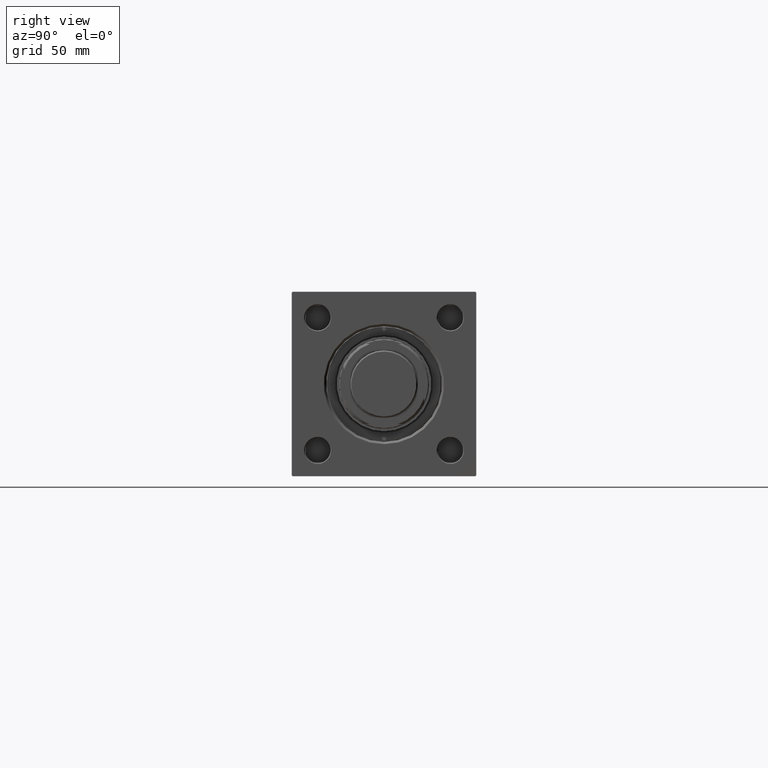
[diagram: clean part render]
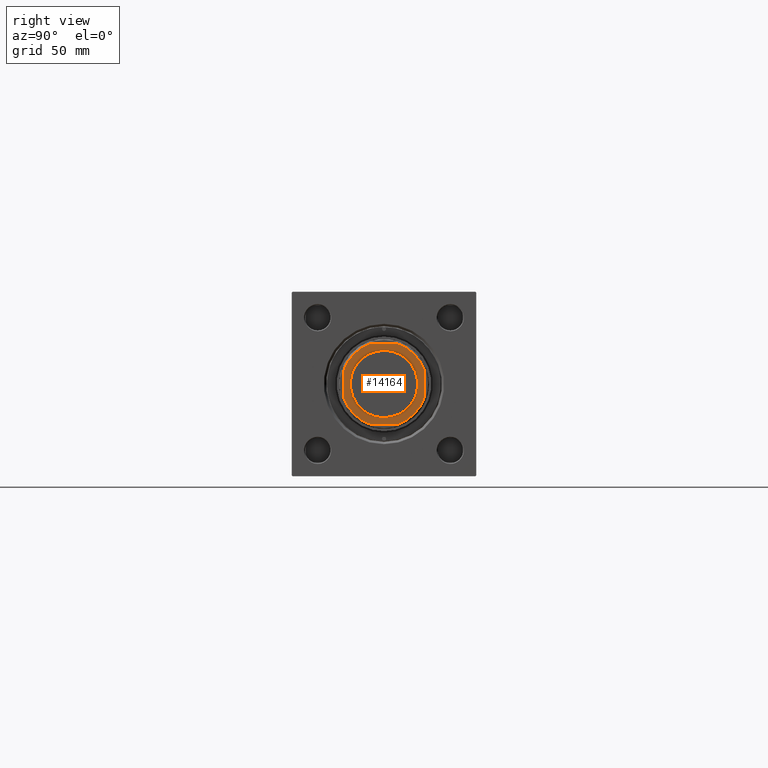
[diagram: same view with one face highlighted and labeled with its STEP entity id]
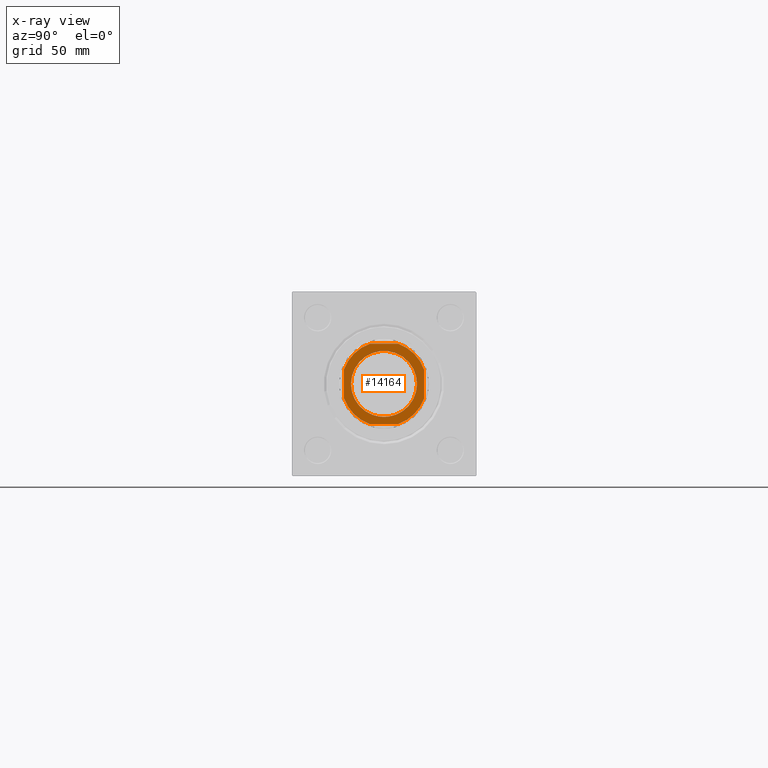
[diagram: x-ray of the same camera — body ghosted, the highlighted face saturated]
A machine part, right view. The second image highlights one B-rep face of the part: STEP entity #14164.
The next image is the same camera in x-ray: the body ghosted, the highlighted face saturated — about 0% of this face is hidden behind the body in this view.
In plain terms, the highlighted planar face has unit normal (1, 0, 0).
Its self-contained STEP definition (entity closure, byte-faithful):
#512 = VERTEX_POINT ( 'NONE', #25405 ) ;
#1053 = ORIENTED_EDGE ( 'NONE', *, *, #2964, .T. ) ;
#1127 = LINE ( 'NONE', #6024, #16116 ) ;
#1290 = CARTESIAN_POINT ( 'NONE',  ( 0.000000000000000000, 0.000000000000000000, 306.0000000000000000 ) ) ;
#1526 = CARTESIAN_POINT ( 'NONE',  ( -24.99999999999999645, -8.789197915623281787, 306.0000000000000000 ) ) ;
#1700 = CIRCLE ( 'NONE', #41454, 26.50000000000004263 ) ;
#2248 = DIRECTION ( 'NONE',  ( 0.000000000000000000, -0.000000000000000000, -1.000000000000000000 ) ) ;
#2527 = EDGE_CURVE ( 'NONE', #512, #7964, #15538, .T. ) ;
#2964 = EDGE_CURVE ( 'NONE', #35928, #15104, #5581, .T. ) ;
#2986 = DIRECTION ( 'NONE',  ( 1.387778780781445676E-16, -1.000000000000000000, 0.000000000000000000 ) ) ;
#3419 = CARTESIAN_POINT ( 'NONE',  ( 0.000000000000000000, 0.000000000000000000, 306.0000000000000000 ) ) ;
#4318 = AXIS2_PLACEMENT_3D ( 'NONE', #24592, #28486, #32119 ) ;
#5349 = VERTEX_POINT ( 'NONE', #1526 ) ;
#5581 = CIRCLE ( 'NONE', #48635, 20.54999999999992966 ) ;
#5954 = EDGE_CURVE ( 'NONE', #8696, #5349, #22960, .T. ) ;
#6024 = CARTESIAN_POINT ( 'NONE',  ( 25.00000000000000000, 25.00000000000000000, 306.0000000000000000 ) ) ;
#6444 = DIRECTION ( 'NONE',  ( -0.000000000000000000, 0.000000000000000000, 1.000000000000000000 ) ) ;
#6547 = DIRECTION ( 'NONE',  ( -1.387778780781445676E-16, 1.000000000000000000, -0.000000000000000000 ) ) ;
#6796 = ORIENTED_EDGE ( 'NONE', *, *, #39036, .T. ) ;
#6824 = VERTEX_POINT ( 'NONE', #11294 ) ;
#7964 = VERTEX_POINT ( 'NONE', #17308 ) ;
#8560 = DIRECTION ( 'NONE',  ( 1.000000000000000000, 0.000000000000000000, 0.000000000000000000 ) ) ;
#8696 = VERTEX_POINT ( 'NONE', #34330 ) ;
#8983 = ORIENTED_EDGE ( 'NONE', *, *, #20105, .T. ) ;
#9306 = FACE_BOUND ( 'NONE', #26326, .T. ) ;
#9641 = ORIENTED_EDGE ( 'NONE', *, *, #38593, .T. ) ;
#10564 = EDGE_CURVE ( 'NONE', #20015, #30294, #27031, .T. ) ;
#10593 = AXIS2_PLACEMENT_3D ( 'NONE', #25145, #6444, #22266 ) ;
#11294 = CARTESIAN_POINT ( 'NONE',  ( -8.789197915623267576, -25.00000000000000000, 306.0000000000000000 ) ) ;
#11712 = CARTESIAN_POINT ( 'NONE',  ( -25.00000000000000000, 25.00000000000000000, 306.0000000000000000 ) ) ;
#13928 = VECTOR ( 'NONE', #47212, 1000.000000000000000 ) ;
#14158 = CARTESIAN_POINT ( 'NONE',  ( 0.000000000000000000, 0.000000000000000000, 306.0000000000000000 ) ) ;
#14164 = ADVANCED_FACE ( 'NONE', ( #9306, #48959 ), #37563, .T. ) ;
#14858 = CIRCLE ( 'NONE', #28110, 26.49999999999993250 ) ;
#15104 = VERTEX_POINT ( 'NONE', #34012 ) ;
#15237 = CARTESIAN_POINT ( 'NONE',  ( -24.99999999999999289, -25.00000000000000000, 306.0000000000000000 ) ) ;
#15538 = CIRCLE ( 'NONE', #47805, 26.49999999999998224 ) ;
#16116 = VECTOR ( 'NONE', #6547, 1000.000000000000000 ) ;
#16258 = CARTESIAN_POINT ( 'NONE',  ( 0.000000000000000000, 0.000000000000000000, 306.0000000000000000 ) ) ;
#17287 = DIRECTION ( 'NONE',  ( 0.000000000000000000, -0.000000000000000000, -1.000000000000000000 ) ) ;
#17308 = CARTESIAN_POINT ( 'NONE',  ( 25.00000000000000355, -8.789197915623402579, 306.0000000000000000 ) ) ;
#17561 = EDGE_CURVE ( 'NONE', #5349, #6824, #14858, .T. ) ;
#18042 = DIRECTION ( 'NONE',  ( -0.000000000000000000, 0.000000000000000000, 1.000000000000000000 ) ) ;
#18586 = CARTESIAN_POINT ( 'NONE',  ( 0.000000000000000000, 0.000000000000000000, 306.0000000000000000 ) ) ;
#19918 = ORIENTED_EDGE ( 'NONE', *, *, #2527, .T. ) ;
#20015 = VERTEX_POINT ( 'NONE', #39606 ) ;
#20105 = EDGE_CURVE ( 'NONE', #30294, #8696, #1700, .T. ) ;
#22266 = DIRECTION ( 'NONE',  ( 1.000000000000000000, 0.000000000000000000, 0.000000000000000000 ) ) ;
#22960 = LINE ( 'NONE', #42659, #31136 ) ;
#24592 = CARTESIAN_POINT ( 'NONE',  ( 0.000000000000000000, 0.000000000000000000, 306.0000000000000000 ) ) ;
#24745 = EDGE_CURVE ( 'NONE', #6824, #512, #39085, .T. ) ;
#25145 = CARTESIAN_POINT ( 'NONE',  ( 0.000000000000000000, 0.000000000000000000, 306.0000000000000000 ) ) ;
#25405 = CARTESIAN_POINT ( 'NONE',  ( 8.789197915623409685, -25.00000000000000000, 306.0000000000000000 ) ) ;
#26008 = CARTESIAN_POINT ( 'NONE',  ( -8.789197915623599755, 25.00000000000000000, 306.0000000000000000 ) ) ;
#26326 = EDGE_LOOP ( 'NONE', ( #9641, #1053 ) ) ;
#26510 = CARTESIAN_POINT ( 'NONE',  ( -20.54999999999992966, 2.516649172247802088E-15, 306.0000000000000000 ) ) ;
#26716 = CIRCLE ( 'NONE', #41575, 20.54999999999992966 ) ;
#27031 = LINE ( 'NONE', #11712, #13928 ) ;
#28110 = AXIS2_PLACEMENT_3D ( 'NONE', #3419, #38962, #47231 ) ;
#28486 = DIRECTION ( 'NONE',  ( -0.000000000000000000, 0.000000000000000000, 1.000000000000000000 ) ) ;
#30294 = VERTEX_POINT ( 'NONE', #26008 ) ;
#31063 = DIRECTION ( 'NONE',  ( 1.000000000000000000, 0.000000000000000000, 0.000000000000000000 ) ) ;
#31136 = VECTOR ( 'NONE', #2986, 1000.000000000000000 ) ;
#31246 = ORIENTED_EDGE ( 'NONE', *, *, #5954, .T. ) ;
#31948 = CARTESIAN_POINT ( 'NONE',  ( 25.00000000000000355, 8.789197915623406132, 306.0000000000000000 ) ) ;
#32119 = DIRECTION ( 'NONE',  ( 1.000000000000000000, 0.000000000000000000, 0.000000000000000000 ) ) ;
#33101 = DIRECTION ( 'NONE',  ( 1.000000000000000000, 0.000000000000000000, 0.000000000000000000 ) ) ;
#33325 = CIRCLE ( 'NONE', #4318, 26.49999999999998224 ) ;
#33686 = ORIENTED_EDGE ( 'NONE', *, *, #10564, .T. ) ;
#33875 = DIRECTION ( 'NONE',  ( 1.000000000000000000, 0.000000000000000000, 0.000000000000000000 ) ) ;
#34012 = CARTESIAN_POINT ( 'NONE',  ( 20.54999999999992966, 0.000000000000000000, 306.0000000000000000 ) ) ;
#34330 = CARTESIAN_POINT ( 'NONE',  ( -24.99999999999999645, 8.789197915623610413, 306.0000000000000000 ) ) ;
#35928 = VERTEX_POINT ( 'NONE', #26510 ) ;
#37563 = PLANE ( 'NONE',  #10593 ) ;
#37896 = ORIENTED_EDGE ( 'NONE', *, *, #17561, .T. ) ;
#38593 = EDGE_CURVE ( 'NONE', #15104, #35928, #26716, .T. ) ;
#38762 = ORIENTED_EDGE ( 'NONE', *, *, #24745, .T. ) ;
#38962 = DIRECTION ( 'NONE',  ( -0.000000000000000000, 0.000000000000000000, 1.000000000000000000 ) ) ;
#39036 = EDGE_CURVE ( 'NONE', #43599, #20015, #33325, .T. ) ;
#39085 = LINE ( 'NONE', #15237, #45737 ) ;
#39606 = CARTESIAN_POINT ( 'NONE',  ( 8.789197915623409685, 25.00000000000000000, 306.0000000000000000 ) ) ;
#41454 = AXIS2_PLACEMENT_3D ( 'NONE', #14158, #18042, #33875 ) ;
#41575 = AXIS2_PLACEMENT_3D ( 'NONE', #16258, #17287, #33101 ) ;
#42659 = CARTESIAN_POINT ( 'NONE',  ( -25.00000000000000000, 25.00000000000000000, 306.0000000000000000 ) ) ;
#43472 = EDGE_CURVE ( 'NONE', #7964, #43599, #1127, .T. ) ;
#43599 = VERTEX_POINT ( 'NONE', #31948 ) ;
#44073 = DIRECTION ( 'NONE',  ( -0.000000000000000000, 0.000000000000000000, 1.000000000000000000 ) ) ;
#45737 = VECTOR ( 'NONE', #31063, 1000.000000000000000 ) ;
#46418 = ORIENTED_EDGE ( 'NONE', *, *, #43472, .T. ) ;
#47212 = DIRECTION ( 'NONE',  ( -1.000000000000000000, -0.000000000000000000, -0.000000000000000000 ) ) ;
#47231 = DIRECTION ( 'NONE',  ( 1.000000000000000000, 0.000000000000000000, 0.000000000000000000 ) ) ;
#47805 = AXIS2_PLACEMENT_3D ( 'NONE', #1290, #44073, #8560 ) ;
#48635 = AXIS2_PLACEMENT_3D ( 'NONE', #18586, #2248, #49692 ) ;
#48959 = FACE_OUTER_BOUND ( 'NONE', #49892, .T. ) ;
#49692 = DIRECTION ( 'NONE',  ( 1.000000000000000000, 0.000000000000000000, 0.000000000000000000 ) ) ;
#49892 = EDGE_LOOP ( 'NONE', ( #46418, #6796, #33686, #8983, #31246, #37896, #38762, #19918 ) ) ;